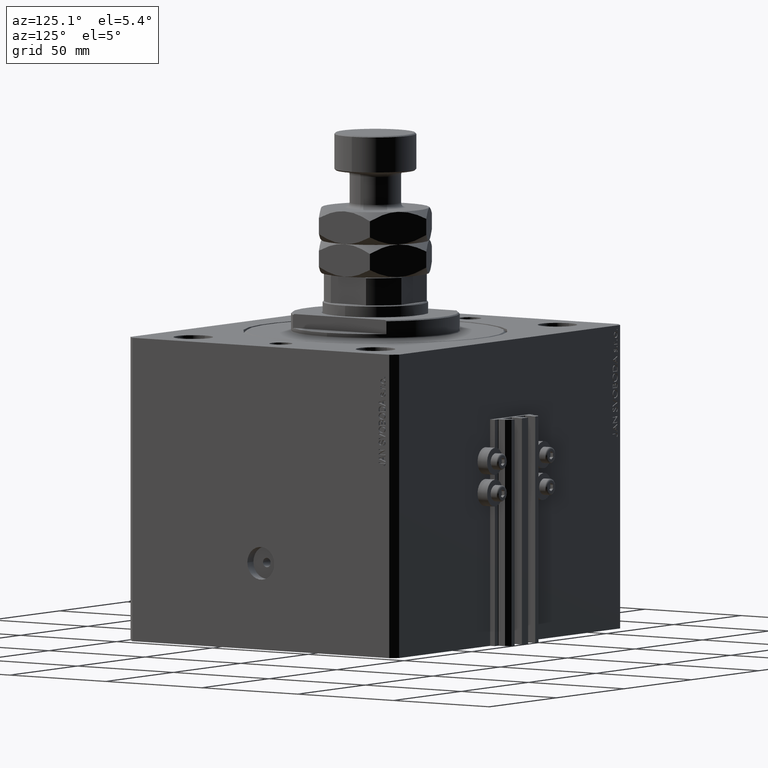
[diagram: clean part render]
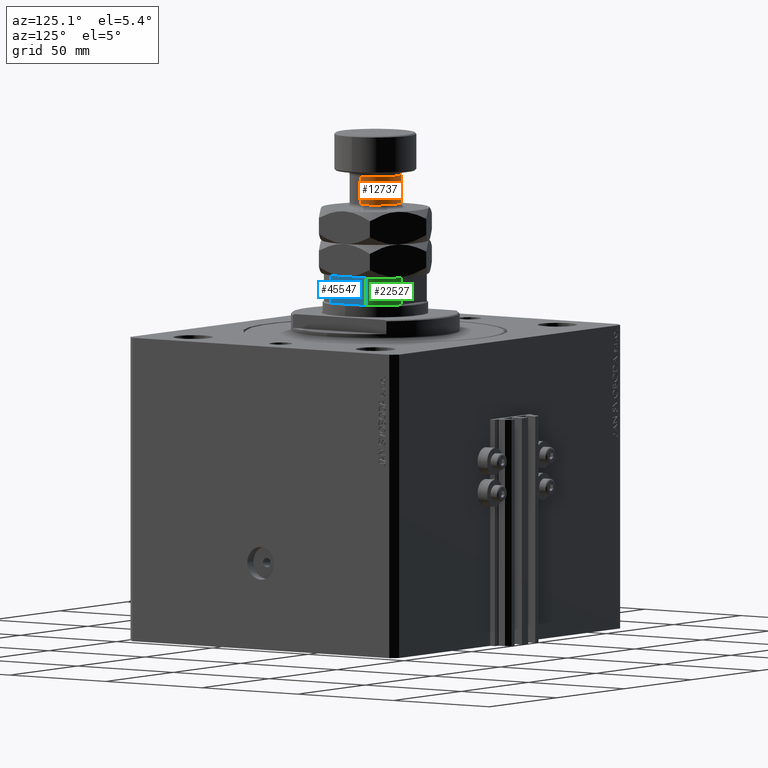
[diagram: same view with three faces highlighted in distinct colors, each labeled with its STEP entity id]
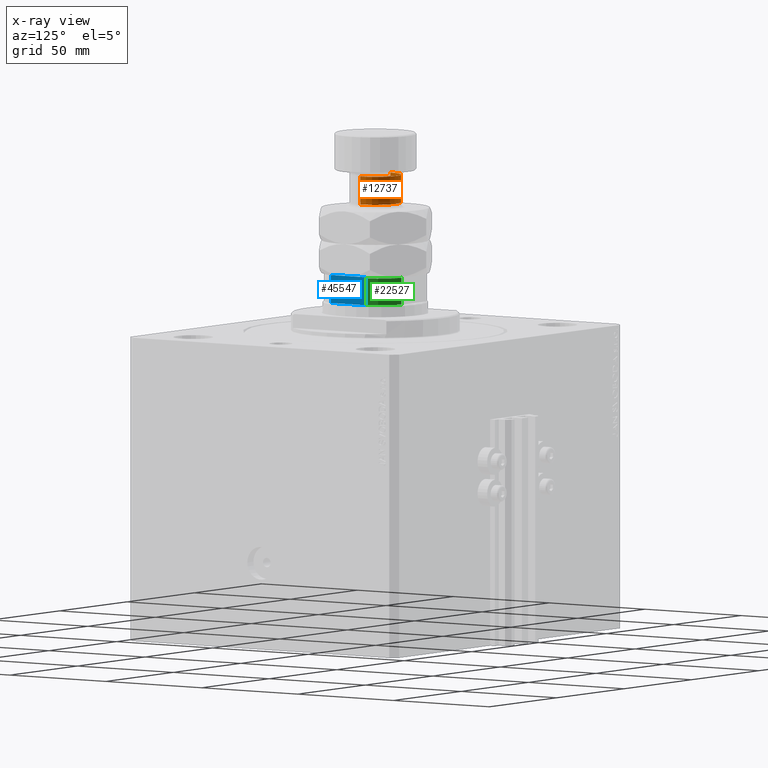
[diagram: x-ray of the same camera — body ghosted, the three highlighted faces saturated]
A machine part, auxiliary view with three faces highlighted in distinct colors.
The next image is the same camera in x-ray (body ghosted, the three faces saturated) — at least one of them is partly hidden behind the body in this view.
Their STEP definitions:

[orange] entity #12737 — the highlighted cylindrical surface (edge-blend (fillet) strip) has radius 11 mm, axis along (-0, -0, -1).
#3660 = DIRECTION ( 'NONE',  ( -0.000000000000000000, -0.000000000000000000, -1.000000000000000000 ) ) ;
#6028 = VERTEX_POINT ( 'NONE', #36276 ) ;
#6988 = CARTESIAN_POINT ( 'NONE',  ( 0.000000000000000000, 0.000000000000000000, 44.00000000000000000 ) ) ;
#7004 = CIRCLE ( 'NONE', #34668, 11.00000000000000000 ) ;
#10650 = VERTEX_POINT ( 'NONE', #39047 ) ;
#12005 = LINE ( 'NONE', #16217, #28372 ) ;
#12521 = EDGE_LOOP ( 'NONE', ( #21616, #32416, #33473, #15197 ) ) ;
#12737 = ADVANCED_FACE ( 'NONE', ( #17915 ), #39926, .T. ) ;
#15197 = ORIENTED_EDGE ( 'NONE', *, *, #34472, .F. ) ;
#16217 = CARTESIAN_POINT ( 'NONE',  ( -11.00000000000000000, 0.000000000000000000, 44.00000000000000000 ) ) ;
#17915 = FACE_OUTER_BOUND ( 'NONE', #12521, .T. ) ;
#20182 = DIRECTION ( 'NONE',  ( -0.000000000000000000, -0.000000000000000000, -1.000000000000000000 ) ) ;
#21223 = DIRECTION ( 'NONE',  ( -0.000000000000000000, -0.000000000000000000, -1.000000000000000000 ) ) ;
#21616 = ORIENTED_EDGE ( 'NONE', *, *, #30823, .T. ) ;
#22098 = VECTOR ( 'NONE', #21223, 1000.000000000000000 ) ;
#23404 = CARTESIAN_POINT ( 'NONE',  ( 0.000000000000000000, 0.000000000000000000, 30.00000000000000000 ) ) ;
#28372 = VECTOR ( 'NONE', #20182, 1000.000000000000000 ) ;
#29617 = LINE ( 'NONE', #32814, #22098 ) ;
#30652 = CARTESIAN_POINT ( 'NONE',  ( 0.000000000000000000, 0.000000000000000000, 41.99999999999999289 ) ) ;
#30823 = EDGE_CURVE ( 'NONE', #40165, #31011, #36109, .T. ) ;
#31011 = VERTEX_POINT ( 'NONE', #32041 ) ;
#31731 = CARTESIAN_POINT ( 'NONE',  ( -11.00000000000000000, 0.000000000000000000, 41.99999999999999289 ) ) ;
#32041 = CARTESIAN_POINT ( 'NONE',  ( 11.00000000000000000, 1.347111479062088405E-15, 41.99999999999999289 ) ) ;
#32202 = AXIS2_PLACEMENT_3D ( 'NONE', #30652, #3660, #41797 ) ;
#32416 = ORIENTED_EDGE ( 'NONE', *, *, #35446, .T. ) ;
#32814 = CARTESIAN_POINT ( 'NONE',  ( 11.00000000000000000, 1.347111479062088405E-15, 44.00000000000000000 ) ) ;
#33473 = ORIENTED_EDGE ( 'NONE', *, *, #34504, .T. ) ;
#34472 = EDGE_CURVE ( 'NONE', #40165, #10650, #12005, .T. ) ;
#34504 = EDGE_CURVE ( 'NONE', #6028, #10650, #7004, .T. ) ;
#34668 = AXIS2_PLACEMENT_3D ( 'NONE', #23404, #42698, #38712 ) ;
#35446 = EDGE_CURVE ( 'NONE', #31011, #6028, #29617, .T. ) ;
#36091 = AXIS2_PLACEMENT_3D ( 'NONE', #6988, #44868, #37181 ) ;
#36109 = CIRCLE ( 'NONE', #32202, 11.00000000000000000 ) ;
#36276 = CARTESIAN_POINT ( 'NONE',  ( 11.00000000000000000, 1.347111479062088405E-15, 30.00000000000000000 ) ) ;
#37181 = DIRECTION ( 'NONE',  ( -1.000000000000000000, 0.000000000000000000, 0.000000000000000000 ) ) ;
#38712 = DIRECTION ( 'NONE',  ( 1.000000000000000000, 0.000000000000000000, 0.000000000000000000 ) ) ;
#39047 = CARTESIAN_POINT ( 'NONE',  ( -11.00000000000000000, 0.000000000000000000, 30.00000000000000000 ) ) ;
#39926 = CYLINDRICAL_SURFACE ( 'NONE', #36091, 11.00000000000000000 ) ;
#40165 = VERTEX_POINT ( 'NONE', #31731 ) ;
#41797 = DIRECTION ( 'NONE',  ( 1.000000000000000000, 0.000000000000000000, 0.000000000000000000 ) ) ;
#42698 = DIRECTION ( 'NONE',  ( 0.000000000000000000, 0.000000000000000000, 1.000000000000000000 ) ) ;
#44868 = DIRECTION ( 'NONE',  ( -0.000000000000000000, -0.000000000000000000, -1.000000000000000000 ) ) ;

[blue] entity #45547 — the highlighted planar face has unit normal (-1, -0, 0).
#1975 = CARTESIAN_POINT ( 'NONE',  ( 19.99999999999999645, 20.00000000000000000, 126.1000000000000227 ) ) ;
#2466 = LINE ( 'NONE', #1975, #23416 ) ;
#3253 = FACE_OUTER_BOUND ( 'NONE', #45619, .T. ) ;
#3750 = EDGE_CURVE ( 'NONE', #21086, #9107, #7530, .T. ) ;
#4811 = CARTESIAN_POINT ( 'NONE',  ( 19.99999999999999645, 9.165151389911683211, 114.1000000000001364 ) ) ;
#5757 = CARTESIAN_POINT ( 'NONE',  ( 20.00000000000000000, 7.889866919029748793, 126.1000000000000227 ) ) ;
#6635 = CARTESIAN_POINT ( 'NONE',  ( 19.99999999999999289, 9.135943898188777723, 125.7204496596642542 ) ) ;
#6673 = CARTESIAN_POINT ( 'NONE',  ( 19.99999999999999645, 9.165151389911683211, -0.001000000000001000089 ) ) ;
#6754 = LINE ( 'NONE', #13955, #47777 ) ;
#7339 = CARTESIAN_POINT ( 'NONE',  ( 20.00000000000000355, -9.005944049512766725, 125.8509746237501048 ) ) ;
#7451 = ORIENTED_EDGE ( 'NONE', *, *, #19339, .F. ) ;
#7530 = LINE ( 'NONE', #10769, #12066 ) ;
#9107 = VERTEX_POINT ( 'NONE', #4811 ) ;
#10068 = CARTESIAN_POINT ( 'NONE',  ( 19.99999999999999289, -9.165151389911693869, 125.6000000000000227 ) ) ;
#10769 = CARTESIAN_POINT ( 'NONE',  ( 19.99999999999999645, 20.00000000000000000, 114.1000000000000085 ) ) ;
#10856 = CARTESIAN_POINT ( 'NONE',  ( 20.00000000000000000, 9.005650948982596660, 125.8512182151568766 ) ) ;
#10936 = ORIENTED_EDGE ( 'NONE', *, *, #42338, .T. ) ;
#11814 = CARTESIAN_POINT ( 'NONE',  ( 20.00000000000000711, -8.731854386667054158, 125.9859761974170027 ) ) ;
#12053 = CARTESIAN_POINT ( 'NONE',  ( 19.99999999999999289, -9.165151389911693869, 125.6000000000000227 ) ) ;
#12066 = VECTOR ( 'NONE', #37230, 1000.000000000000000 ) ;
#12297 = CARTESIAN_POINT ( 'NONE',  ( 19.99999999999999645, -8.134318822980981523, 126.1000000000000227 ) ) ;
#12567 = CARTESIAN_POINT ( 'NONE',  ( 19.99999999999999289, -9.165151389911693869, 114.1000000000001364 ) ) ;
#13716 = B_SPLINE_CURVE_WITH_KNOTS ( 'NONE', 3,
 ( #14835, #25246, #6635, #18294, #10856, #37321, #48229, #29440, #22270, #33371 ),
 .UNSPECIFIED., .F., .F.,
 ( 4, 2, 2, 2, 4 ),
 ( 0.000000000000000000, 0.0001842078696387952543, 0.0003684157392775905086, 0.0007368314785551765720, 0.001473662957110353578 ),
 .UNSPECIFIED. ) ;
#13876 = DIRECTION ( 'NONE',  ( -0.000000000000000000, -0.000000000000000000, 1.000000000000000000 ) ) ;
#13955 = CARTESIAN_POINT ( 'NONE',  ( 19.99999999999999289, -9.165151389911693869, -0.001000000000001000089 ) ) ;
#14162 = DIRECTION ( 'NONE',  ( -1.000000000000000000, -1.734723475976806848E-16, 0.000000000000000000 ) ) ;
#14594 = ORIENTED_EDGE ( 'NONE', *, *, #3750, .T. ) ;
#14835 = CARTESIAN_POINT ( 'NONE',  ( 19.99999999999999645, 9.165151389911683211, 125.6000000000000227 ) ) ;
#15150 = AXIS2_PLACEMENT_3D ( 'NONE', #33693, #14162, #29750 ) ;
#18294 = CARTESIAN_POINT ( 'NONE',  ( 19.99999999999999645, 9.055524318101896952, 125.8141986763098004 ) ) ;
#19339 = EDGE_CURVE ( 'NONE', #41245, #43208, #2466, .T. ) ;
#19368 = VERTEX_POINT ( 'NONE', #47260 ) ;
#21086 = VERTEX_POINT ( 'NONE', #12567 ) ;
#22052 = VERTEX_POINT ( 'NONE', #10068 ) ;
#22270 = CARTESIAN_POINT ( 'NONE',  ( 20.00000000000001066, 8.134263528852963887, 126.1000000000001080 ) ) ;
#23211 = CARTESIAN_POINT ( 'NONE',  ( 20.00000000000000355, -9.165151389911670776, 125.6622865831653115 ) ) ;
#23416 = VECTOR ( 'NONE', #39857, 1000.000000000000000 ) ;
#24091 = EDGE_CURVE ( 'NONE', #21086, #22052, #6754, .T. ) ;
#25246 = CARTESIAN_POINT ( 'NONE',  ( 19.99999999999999645, 9.165151389911683211, 125.6624095850606437 ) ) ;
#25338 = VECTOR ( 'NONE', #13876, 1000.000000000000000 ) ;
#25359 = DIRECTION ( 'NONE',  ( -0.000000000000000000, -0.000000000000000000, 1.000000000000000000 ) ) ;
#26517 = B_SPLINE_CURVE_WITH_KNOTS ( 'NONE', 3,
 ( #45938, #12297, #46192, #11814, #31107, #7339, #30625, #26931, #23211, #12053 ),
 .UNSPECIFIED., .F., .F.,
 ( 4, 2, 2, 2, 4 ),
 ( 1.734723475976807094E-18, 0.0007281986681936650002, 0.001092298002290506987, 0.001274347669338925758, 0.001456397336387344529 ),
 .UNSPECIFIED. ) ;
#26931 = CARTESIAN_POINT ( 'NONE',  ( 20.00000000000000000, -9.135966866521641805, 125.7203262903151000 ) ) ;
#29440 = CARTESIAN_POINT ( 'NONE',  ( 20.00000000000001066, 8.377106304411501725, 126.0787779673725737 ) ) ;
#29750 = DIRECTION ( 'NONE',  ( 1.734723475976806848E-16, -1.000000000000000000, 0.000000000000000000 ) ) ;
#30625 = CARTESIAN_POINT ( 'NONE',  ( 20.00000000000000000, -9.056020599733278331, 125.8137161059354412 ) ) ;
#30709 = EDGE_CURVE ( 'NONE', #19368, #43208, #13716, .T. ) ;
#31107 = CARTESIAN_POINT ( 'NONE',  ( 20.00000000000000000, -8.849170428565228619, 125.9446655850051968 ) ) ;
#32172 = CARTESIAN_POINT ( 'NONE',  ( 20.00000000000000000, -7.889866919029739911, 126.1000000000000227 ) ) ;
#33204 = PLANE ( 'NONE',  #15150 ) ;
#33371 = CARTESIAN_POINT ( 'NONE',  ( 20.00000000000000000, 7.889866919029748793, 126.1000000000000227 ) ) ;
#33693 = CARTESIAN_POINT ( 'NONE',  ( 19.99999999999999645, 20.00000000000000000, 126.1000000000000227 ) ) ;
#37230 = DIRECTION ( 'NONE',  ( -1.734723475976807094E-16, 1.000000000000000000, -0.000000000000000000 ) ) ;
#37321 = CARTESIAN_POINT ( 'NONE',  ( 20.00000000000000000, 8.847700323750256501, 125.9454059444999814 ) ) ;
#39857 = DIRECTION ( 'NONE',  ( -1.734723475976807094E-16, 1.000000000000000000, -0.000000000000000000 ) ) ;
#40839 = LINE ( 'NONE', #6673, #25338 ) ;
#41245 = VERTEX_POINT ( 'NONE', #32172 ) ;
#42245 = ORIENTED_EDGE ( 'NONE', *, *, #30709, .T. ) ;
#42338 = EDGE_CURVE ( 'NONE', #9107, #19368, #40839, .T. ) ;
#42685 = EDGE_CURVE ( 'NONE', #41245, #22052, #26517, .T. ) ;
#43208 = VERTEX_POINT ( 'NONE', #5757 ) ;
#45547 = ADVANCED_FACE ( 'NONE', ( #3253 ), #33204, .F. ) ;
#45619 = EDGE_LOOP ( 'NONE', ( #7451, #47754, #48492, #14594, #10936, #42245 ) ) ;
#45938 = CARTESIAN_POINT ( 'NONE',  ( 20.00000000000000000, -7.889866919029739911, 126.1000000000000227 ) ) ;
#46192 = CARTESIAN_POINT ( 'NONE',  ( 20.00000000000000000, -8.376270842886095025, 126.0790317661354152 ) ) ;
#47260 = CARTESIAN_POINT ( 'NONE',  ( 19.99999999999999645, 9.165151389911683211, 125.6000000000000227 ) ) ;
#47754 = ORIENTED_EDGE ( 'NONE', *, *, #42685, .T. ) ;
#47777 = VECTOR ( 'NONE', #25359, 1000.000000000000000 ) ;
#48229 = CARTESIAN_POINT ( 'NONE',  ( 19.99999999999999645, 8.731041210088305249, 125.9862065548025498 ) ) ;
#48492 = ORIENTED_EDGE ( 'NONE', *, *, #24091, .F. ) ;

[green] entity #22527 — the highlighted cylindrical surface (partial cylindrical patch) has radius 22 mm, axis along (0, 0, 1).
#322 = VERTEX_POINT ( 'NONE', #39810 ) ;
#1285 = FACE_OUTER_BOUND ( 'NONE', #11605, .T. ) ;
#1654 = AXIS2_PLACEMENT_3D ( 'NONE', #45296, #30463, #11413 ) ;
#4328 = AXIS2_PLACEMENT_3D ( 'NONE', #27017, #7929, #30711 ) ;
#4811 = CARTESIAN_POINT ( 'NONE',  ( 19.99999999999999645, 9.165151389911683211, 114.1000000000001364 ) ) ;
#6447 = EDGE_CURVE ( 'NONE', #322, #19368, #23042, .T. ) ;
#6673 = CARTESIAN_POINT ( 'NONE',  ( 19.99999999999999645, 9.165151389911683211, -0.001000000000001000089 ) ) ;
#7929 = DIRECTION ( 'NONE',  ( 0.000000000000000000, 0.000000000000000000, 1.000000000000000000 ) ) ;
#8246 = DIRECTION ( 'NONE',  ( -0.000000000000000000, -0.000000000000000000, 1.000000000000000000 ) ) ;
#9107 = VERTEX_POINT ( 'NONE', #4811 ) ;
#9767 = EDGE_CURVE ( 'NONE', #13726, #322, #39036, .T. ) ;
#11413 = DIRECTION ( 'NONE',  ( 1.000000000000000000, 0.000000000000000000, 0.000000000000000000 ) ) ;
#11605 = EDGE_LOOP ( 'NONE', ( #21537, #42845, #14114, #43935 ) ) ;
#13726 = VERTEX_POINT ( 'NONE', #42385 ) ;
#13876 = DIRECTION ( 'NONE',  ( -0.000000000000000000, -0.000000000000000000, 1.000000000000000000 ) ) ;
#14114 = ORIENTED_EDGE ( 'NONE', *, *, #42338, .F. ) ;
#16540 = CARTESIAN_POINT ( 'NONE',  ( 9.165151389911676105, 20.00000000000000000, -0.001000000000001000089 ) ) ;
#19368 = VERTEX_POINT ( 'NONE', #47260 ) ;
#19593 = VECTOR ( 'NONE', #23732, 1000.000000000000000 ) ;
#21537 = ORIENTED_EDGE ( 'NONE', *, *, #9767, .T. ) ;
#22527 = ADVANCED_FACE ( 'NONE', ( #1285 ), #35444, .T. ) ;
#23042 = CIRCLE ( 'NONE', #1654, 22.00000000000000000 ) ;
#23732 = DIRECTION ( 'NONE',  ( -0.000000000000000000, -0.000000000000000000, 1.000000000000000000 ) ) ;
#24341 = CARTESIAN_POINT ( 'NONE',  ( 0.000000000000000000, 0.000000000000000000, -0.001000000000001000089 ) ) ;
#24912 = CIRCLE ( 'NONE', #4328, 22.00000000000012790 ) ;
#25305 = EDGE_CURVE ( 'NONE', #9107, #13726, #24912, .T. ) ;
#25338 = VECTOR ( 'NONE', #13876, 1000.000000000000000 ) ;
#27017 = CARTESIAN_POINT ( 'NONE',  ( 0.000000000000000000, 0.000000000000000000, 114.1000000000000085 ) ) ;
#27999 = AXIS2_PLACEMENT_3D ( 'NONE', #24341, #8246, #38430 ) ;
#30463 = DIRECTION ( 'NONE',  ( 0.000000000000000000, -0.000000000000000000, -1.000000000000000000 ) ) ;
#30711 = DIRECTION ( 'NONE',  ( 1.000000000000000000, 0.000000000000000000, 0.000000000000000000 ) ) ;
#35444 = CYLINDRICAL_SURFACE ( 'NONE', #27999, 22.00000000000000000 ) ;
#38430 = DIRECTION ( 'NONE',  ( 1.000000000000000000, 0.000000000000000000, 0.000000000000000000 ) ) ;
#39036 = LINE ( 'NONE', #16540, #19593 ) ;
#39810 = CARTESIAN_POINT ( 'NONE',  ( 9.165151389911676105, 20.00000000000000000, 125.6000000000000227 ) ) ;
#40839 = LINE ( 'NONE', #6673, #25338 ) ;
#42338 = EDGE_CURVE ( 'NONE', #9107, #19368, #40839, .T. ) ;
#42385 = CARTESIAN_POINT ( 'NONE',  ( 9.165151389911676105, 20.00000000000000000, 114.1000000000001364 ) ) ;
#42845 = ORIENTED_EDGE ( 'NONE', *, *, #6447, .T. ) ;
#43935 = ORIENTED_EDGE ( 'NONE', *, *, #25305, .T. ) ;
#45296 = CARTESIAN_POINT ( 'NONE',  ( 0.000000000000000000, 0.000000000000000000, 125.6000000000000227 ) ) ;
#47260 = CARTESIAN_POINT ( 'NONE',  ( 19.99999999999999645, 9.165151389911683211, 125.6000000000000227 ) ) ;